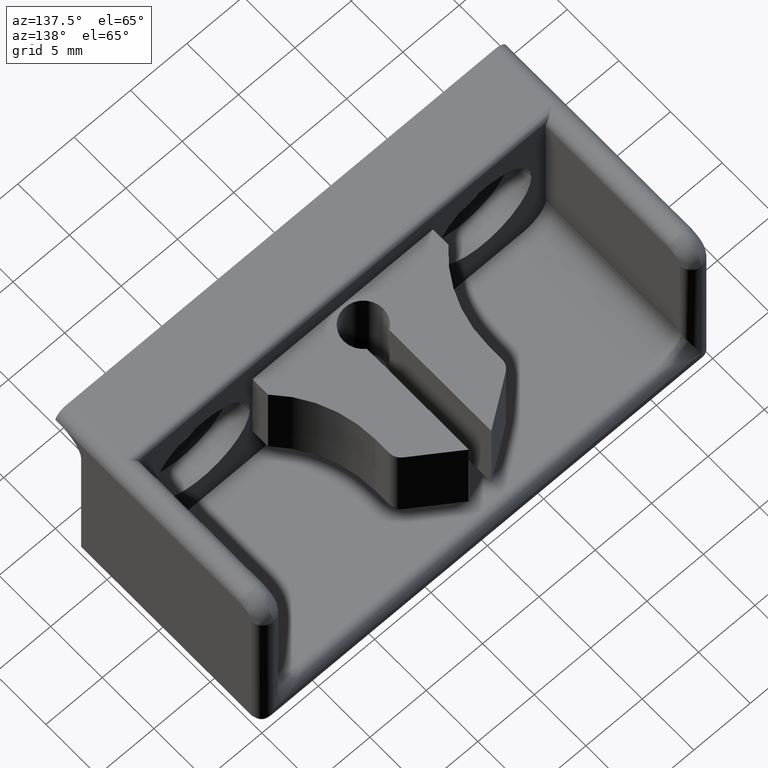
[diagram: clean part render]
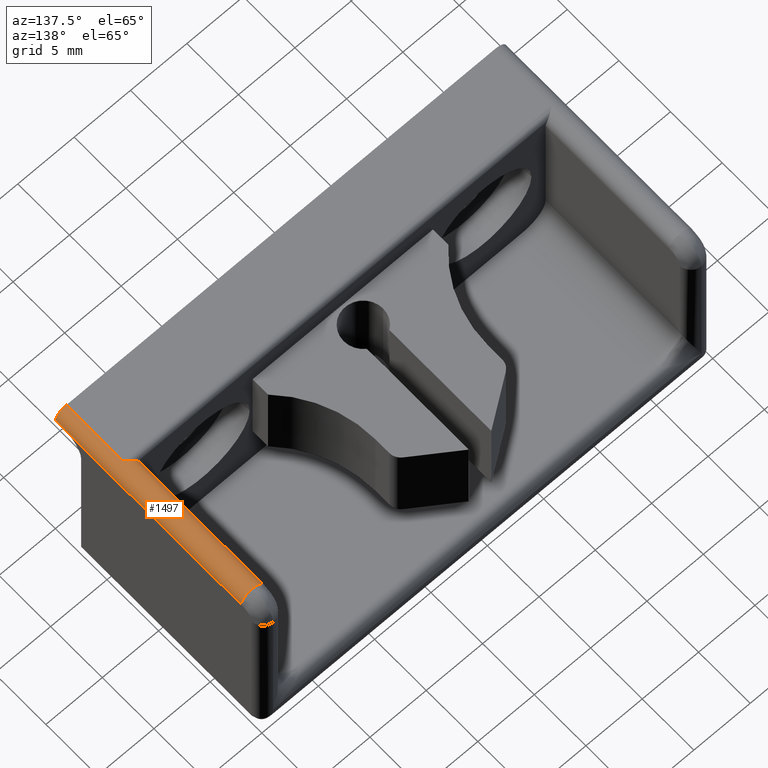
[diagram: same view with one face highlighted and labeled with its STEP entity id]
A machine part, auxiliary view. The second image highlights one B-rep face of the part: STEP entity #1497.
In plain terms, the highlighted cylindrical surface (edge-blend (fillet) strip) has radius 1 mm, axis along (0, -1, 0).
Its self-contained STEP definition (entity closure, byte-faithful):
#488=CARTESIAN_POINT('',(18.133974596215563,-3.999999999999997,16.500000000000000));
#489=VERTEX_POINT('',#488);
#496=CARTESIAN_POINT('',(18.000000000000007,-3.999999999999997,15.999999999999995));
#497=VERTEX_POINT('',#496);
#498=CARTESIAN_POINT('',(19.000000000000007,-3.999999999999997,16.0));
#499=DIRECTION('',(0.0,-1.0,0.0));
#500=DIRECTION('',(1.0,0.0,0.0));
#501=AXIS2_PLACEMENT_3D('',#498,#499,#500);
#502=CIRCLE('',#501,1.000000000000001);
#503=EDGE_CURVE('',#489,#497,#502,.T.);
#775=CARTESIAN_POINT('',(19.000000000000007,-9.999999999999995,17.0));
#776=VERTEX_POINT('',#775);
#784=CARTESIAN_POINT('',(19.994731051457251,-9.999999999999995,16.102518950768868));
#785=VERTEX_POINT('',#784);
#792=CARTESIAN_POINT('',(19.000000000000007,-9.999999999999995,16.0));
#793=DIRECTION('',(0.0,-1.0,0.0));
#794=DIRECTION('',(-1.0,0.0,0.0));
#795=AXIS2_PLACEMENT_3D('',#792,#793,#794);
#796=CIRCLE('',#795,1.000000000000001);
#797=EDGE_CURVE('',#785,#776,#796,.T.);
#833=CARTESIAN_POINT('',(20.000000000000007,7.999999999999995,16.0));
#834=VERTEX_POINT('',#833);
#842=CARTESIAN_POINT('',(20.000000000000007,-8.867887930973682,16.0));
#843=VERTEX_POINT('',#842);
#844=CARTESIAN_POINT('',(20.000000000000007,7.999999999999995,16.0));
#845=DIRECTION('',(0.0,-1.0,0.0));
#846=VECTOR('',#845,16.867887930973676);
#847=LINE('',#844,#846);
#848=EDGE_CURVE('',#834,#843,#847,.T.);
#865=CARTESIAN_POINT('',(19.000000000000007,-4.499999999999997,17.0));
#866=VERTEX_POINT('',#865);
#867=CARTESIAN_POINT('',(19.000000000000007,-9.999999999999995,17.0));
#868=DIRECTION('',(0.0,1.0,0.0));
#869=VECTOR('',#868,5.499999999999997);
#870=LINE('',#867,#869);
#871=EDGE_CURVE('',#776,#866,#870,.T.);
#946=CARTESIAN_POINT('',(18.000000000000007,7.999999999999995,16.0));
#947=VERTEX_POINT('',#946);
#948=CARTESIAN_POINT('',(18.000000000000007,-3.999999999999998,16.0));
#949=DIRECTION('',(0.0,1.0,0.0));
#950=VECTOR('',#949,11.999999999999993);
#951=LINE('',#948,#950);
#952=EDGE_CURVE('',#497,#947,#951,.T.);
#1050=CARTESIAN_POINT('',(19.994731051457251,-9.499999999999996,16.102518950768868));
#1051=VERTEX_POINT('',#1050);
#1058=CARTESIAN_POINT('',(19.994731051457251,-9.499999999999996,16.102518950768868));
#1059=DIRECTION('',(0.0,-1.0,0.0));
#1060=VECTOR('',#1059,0.499999999999998);
#1061=LINE('',#1058,#1060);
#1062=EDGE_CURVE('',#1051,#785,#1061,.T.);
#1077=CARTESIAN_POINT('',(20.000000000000007,-8.867887930973682,16.0));
#1078=CARTESIAN_POINT('',(20.000000000000007,-9.073063505775256,16.068350594149038));
#1079=CARTESIAN_POINT('',(19.994731051457251,-9.283738999781086,16.102518950768868));
#1080=CARTESIAN_POINT('',(19.994731051457251,-9.499999999999996,16.102518950768868));
#1081=B_SPLINE_CURVE_WITH_KNOTS('',3,(#1077,#1078,#1079,#1080),.UNSPECIFIED.,.F.,.U.,(4,4),(0.0,0.000640393289233),.UNSPECIFIED.);
#1082=EDGE_CURVE('',#843,#1051,#1081,.T.);
#1433=CARTESIAN_POINT('',(19.000000000000007,7.999999999999995,17.0));
#1434=VERTEX_POINT('',#1433);
#1435=CARTESIAN_POINT('',(19.000000000000007,7.999999999999995,16.0));
#1436=DIRECTION('',(0.0,1.0,0.0));
#1437=DIRECTION('',(0.0,0.0,1.0));
#1438=AXIS2_PLACEMENT_3D('',#1435,#1436,#1437);
#1439=CIRCLE('',#1438,1.000000000000001);
#1440=EDGE_CURVE('',#1434,#834,#1439,.T.);
#1462=CARTESIAN_POINT('',(19.000000000000007,8.000000009999994,16.0));
#1463=DIRECTION('',(0.0,-1.0,0.0));
#1464=DIRECTION('',(0.0,0.0,-1.0));
#1465=AXIS2_PLACEMENT_3D('',#1462,#1463,#1464);
#1466=CYLINDRICAL_SURFACE('',#1465,1.000000000000001);
#1467=ORIENTED_EDGE('',*,*,#1440,.F.);
#1468=CARTESIAN_POINT('',(19.000000000000007,7.999999999999995,16.0));
#1469=DIRECTION('',(0.0,1.0,0.0));
#1470=DIRECTION('',(0.0,0.0,1.0));
#1471=AXIS2_PLACEMENT_3D('',#1468,#1469,#1470);
#1472=CIRCLE('',#1471,1.000000000000001);
#1473=EDGE_CURVE('',#947,#1434,#1472,.T.);
#1474=ORIENTED_EDGE('',*,*,#1473,.F.);
#1475=ORIENTED_EDGE('',*,*,#952,.F.);
#1476=ORIENTED_EDGE('',*,*,#503,.F.);
#1477=CARTESIAN_POINT('',(18.133974596215563,-3.999999999999997,16.500000000000000));
#1478=CARTESIAN_POINT('',(18.183823630514716,-3.999999999999997,16.586341060114378));
#1479=CARTESIAN_POINT('',(18.244445814676560,-4.021445065089965,16.661666063815172));
#1480=CARTESIAN_POINT('',(18.379545027532245,-4.086239641416947,16.789746626523009));
#1481=CARTESIAN_POINT('',(18.452138497565578,-4.128944623906206,16.840985776380837));
#1482=CARTESIAN_POINT('',(18.603912077180443,-4.224921595459701,16.922238396143349));
#1483=CARTESIAN_POINT('',(18.681068877695601,-4.277020017277179,16.951252572091146));
#1484=CARTESIAN_POINT('',(18.838780041891333,-4.385990520764177,16.990255846633495));
#1485=CARTESIAN_POINT('',(18.920344987523329,-4.443675588138069,17.0));
#1486=CARTESIAN_POINT('',(19.000000000000007,-4.499999999999997,17.0));
#1487=B_SPLINE_CURVE_WITH_KNOTS('',3,(#1477,#1478,#1479,#1480,#1481,#1482,#1483,#1484,#1485,#1486),.UNSPECIFIED.,.F.,.U.,(4,2,2,2,4),(0.0,0.000292670228685,0.000585340457371,0.000878010686056,0.001170680914742),.UNSPECIFIED.);
#1488=EDGE_CURVE('',#489,#866,#1487,.T.);
#1489=ORIENTED_EDGE('',*,*,#1488,.T.);
#1490=ORIENTED_EDGE('',*,*,#871,.F.);
#1491=ORIENTED_EDGE('',*,*,#797,.F.);
#1492=ORIENTED_EDGE('',*,*,#1062,.F.);
#1493=ORIENTED_EDGE('',*,*,#1082,.F.);
#1494=ORIENTED_EDGE('',*,*,#848,.F.);
#1495=EDGE_LOOP('',(#1467,#1474,#1475,#1476,#1489,#1490,#1491,#1492,#1493,#1494));
#1496=FACE_OUTER_BOUND('',#1495,.T.);
#1497=ADVANCED_FACE('',(#1496),#1466,.T.);